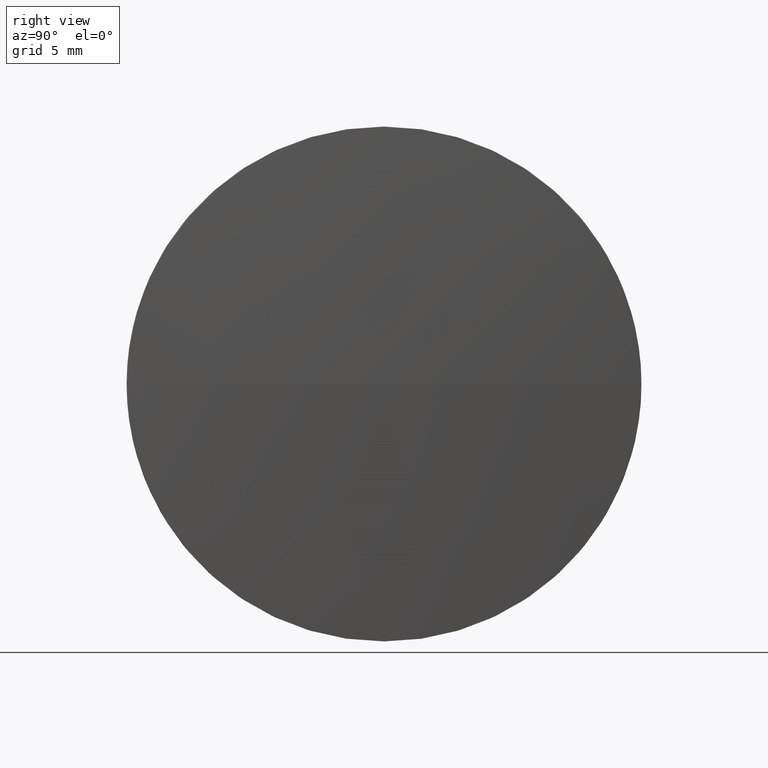
[diagram: clean part render]
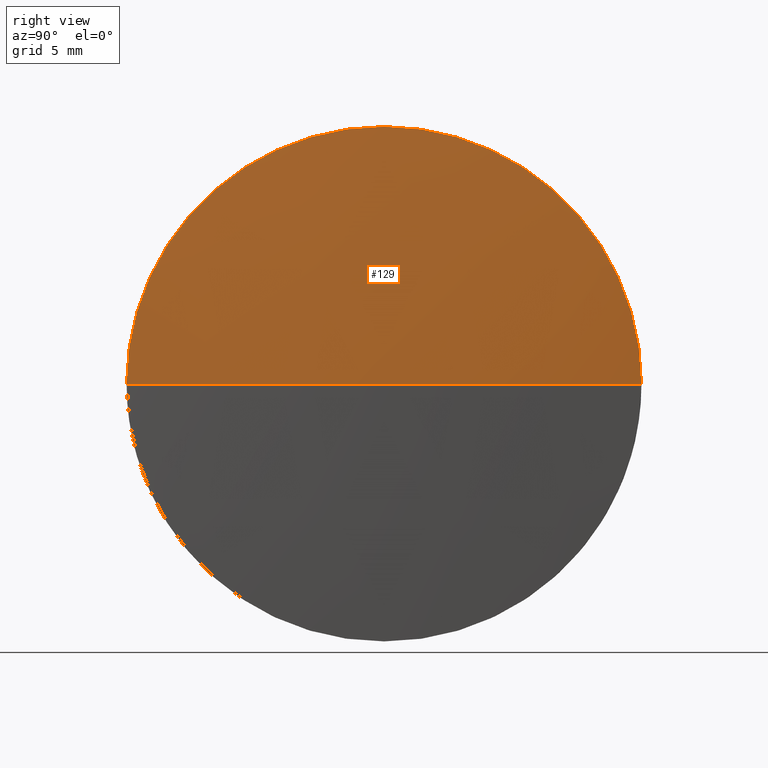
[diagram: same view with one face highlighted and labeled with its STEP entity id]
A machine part, right view. The second image highlights one B-rep face of the part: STEP entity #129.
In plain terms, the highlighted spherical surface has radius 184.031 mm.
Its self-contained STEP definition (entity closure, byte-faithful):
#7 = DIRECTION ( 'NONE',  ( -0.0000000000000000000, 0.0000000000000000000, 1.000000000000000000 ) ) ;
#9 = DIRECTION ( 'NONE',  ( 0.0000000000000000000, 1.224646799147353200E-016, -1.000000000000000000 ) ) ;
#14 = ORIENTED_EDGE ( 'NONE', *, *, #67, .T. ) ;
#20 = DIRECTION ( 'NONE',  ( 0.0000000000000000000, 0.0000000000000000000, 1.000000000000000000 ) ) ;
#35 = CARTESIAN_POINT ( 'NONE',  ( 119.2126064308381400, 65.23355492641221100, 0.0000000000000000000 ) ) ;
#46 = VERTEX_POINT ( 'NONE', #172 ) ;
#47 = DIRECTION ( 'NONE',  ( -0.0000000000000000000, 0.0000000000000000000, -1.000000000000000000 ) ) ;
#51 = CIRCLE ( 'NONE', #95, 184.0310000000000100 ) ;
#53 = EDGE_CURVE ( 'NONE', #46, #146, #134, .T. ) ;
#60 = DIRECTION ( 'NONE',  ( 0.0000000000000000000, 0.0000000000000000000, 1.000000000000000000 ) ) ;
#61 = CARTESIAN_POINT ( 'NONE',  ( -64.81839356916185600, 65.23355492641219700, 0.0000000000000000000 ) ) ;
#62 = AXIS2_PLACEMENT_3D ( 'NONE', #89, #100, #20 ) ;
#67 = EDGE_CURVE ( 'NONE', #78, #110, #73, .T. ) ;
#73 = CIRCLE ( 'NONE', #131, 184.0310000000000100 ) ;
#78 = VERTEX_POINT ( 'NONE', #35 ) ;
#84 = ORIENTED_EDGE ( 'NONE', *, *, #143, .F. ) ;
#89 = CARTESIAN_POINT ( 'NONE',  ( 118.7738692334954700, 65.23355492641219700, 0.0000000000000000000 ) ) ;
#93 = DIRECTION ( 'NONE',  ( -1.000000000000000000, -0.0000000000000000000, -0.0000000000000000000 ) ) ;
#95 = AXIS2_PLACEMENT_3D ( 'NONE', #104, #9, #145 ) ;
#96 = DIRECTION ( 'NONE',  ( 0.0000000000000000000, 1.000000000000000000, 0.0000000000000000000 ) ) ;
#100 = DIRECTION ( 'NONE',  ( -1.000000000000000000, -0.0000000000000000000, -0.0000000000000000000 ) ) ;
#104 = CARTESIAN_POINT ( 'NONE',  ( -64.81839356916185600, 65.23355492641219700, 0.0000000000000000000 ) ) ;
#107 = CARTESIAN_POINT ( 'NONE',  ( 118.7738692334954700, 65.23355492641219700, 0.0000000000000000000 ) ) ;
#110 = VERTEX_POINT ( 'NONE', #137 ) ;
#111 = ORIENTED_EDGE ( 'NONE', *, *, #53, .F. ) ;
#129 = ADVANCED_FACE ( 'NONE', ( #162 ), #154, .T. ) ;
#131 = AXIS2_PLACEMENT_3D ( 'NONE', #61, #7, #178 ) ;
#134 = CIRCLE ( 'NONE', #62, 12.70000000000000300 ) ;
#137 = CARTESIAN_POINT ( 'NONE',  ( 118.7738692334954700, 77.93355492641235600, 0.0000000000000000000 ) ) ;
#143 = EDGE_CURVE ( 'NONE', #78, #46, #51, .T. ) ;
#145 = DIRECTION ( 'NONE',  ( 0.0000000000000000000, 1.000000000000000000, 1.224646799147353200E-016 ) ) ;
#146 = VERTEX_POINT ( 'NONE', #181 ) ;
#148 = AXIS2_PLACEMENT_3D ( 'NONE', #107, #93, #60 ) ;
#152 = EDGE_CURVE ( 'NONE', #146, #110, #173, .T. ) ;
#153 = ORIENTED_EDGE ( 'NONE', *, *, #152, .F. ) ;
#154 = SPHERICAL_SURFACE ( 'NONE', #177, 184.0310000000000100 ) ;
#160 = CARTESIAN_POINT ( 'NONE',  ( -64.81839356916185600, 65.23355492641219700, 0.0000000000000000000 ) ) ;
#162 = FACE_OUTER_BOUND ( 'NONE', #182, .T. ) ;
#172 = CARTESIAN_POINT ( 'NONE',  ( 118.7738692334954700, 52.53355492641202300, -1.555301434917158900E-015 ) ) ;
#173 = CIRCLE ( 'NONE', #148, 12.70000000000000300 ) ;
#177 = AXIS2_PLACEMENT_3D ( 'NONE', #160, #47, #96 ) ;
#178 = DIRECTION ( 'NONE',  ( 1.000000000000000000, 0.0000000000000000000, 0.0000000000000000000 ) ) ;
#181 = CARTESIAN_POINT ( 'NONE',  ( 118.7738692334954700, 65.23355492641219700, 12.70000000000000300 ) ) ;
#182 = EDGE_LOOP ( 'NONE', ( #84, #14, #153, #111 ) ) ;